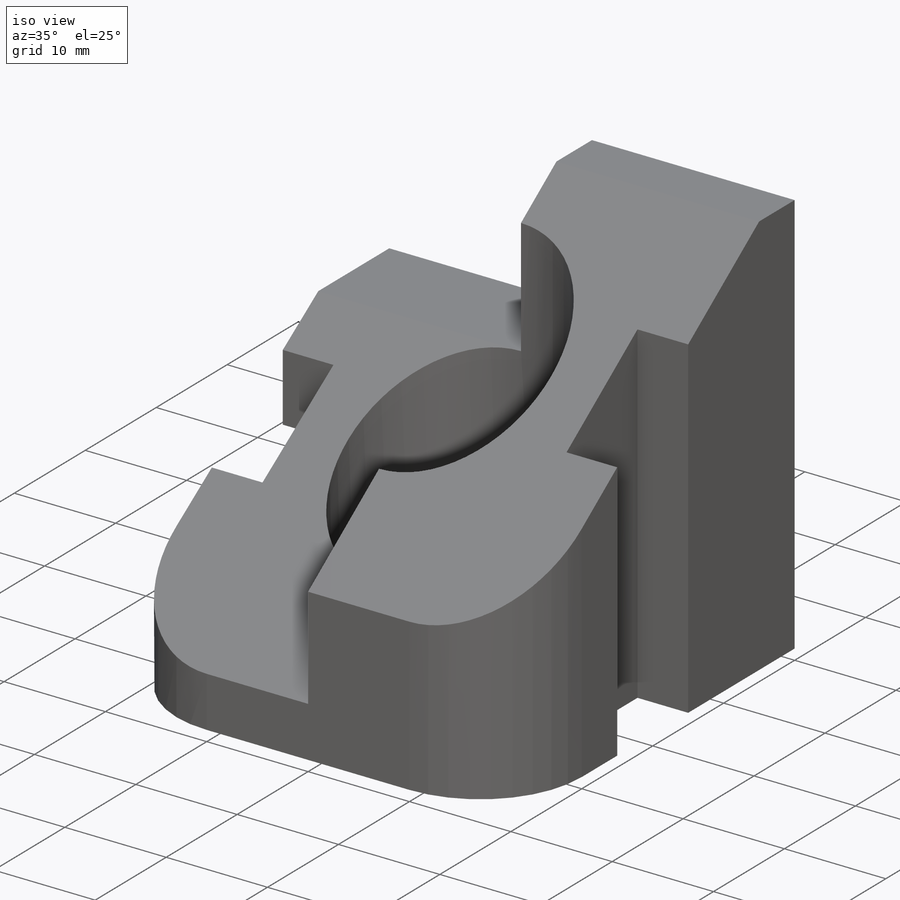
[diagram: iso view]
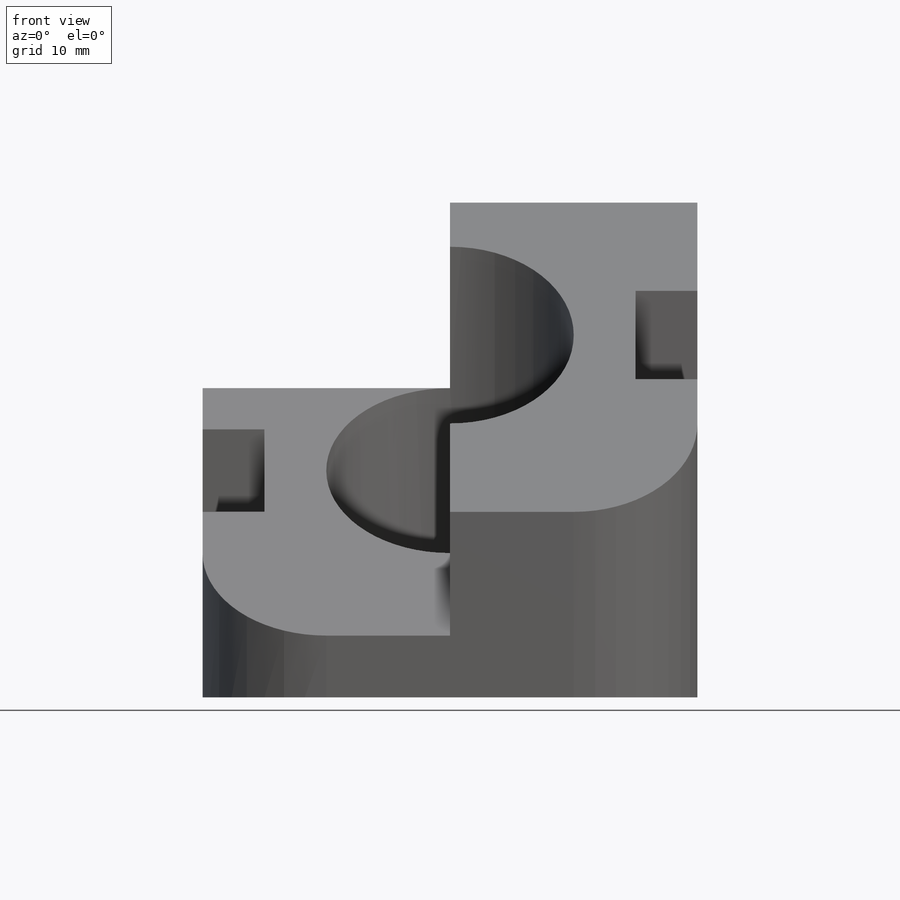
[diagram: front view]
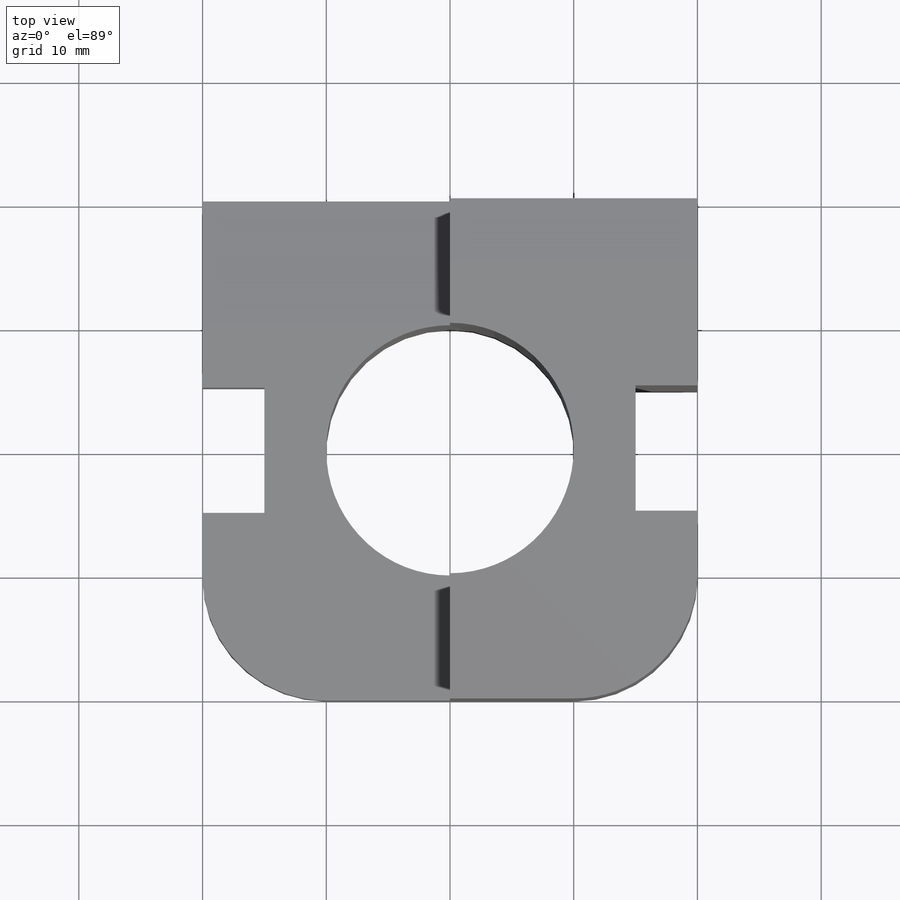
[diagram: top view]
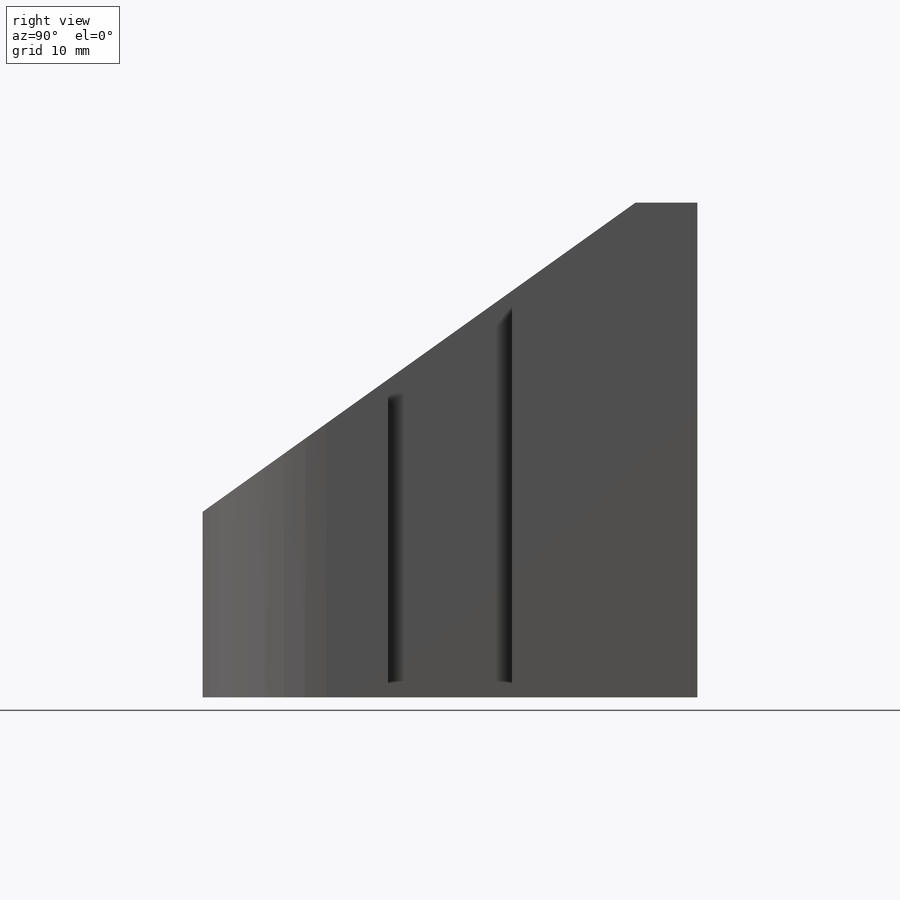
[diagram: right view]
SOLIDWORKS PART (.sldprt)
format: sldprt  version: not decoded by parser v0  size: 266,752 bytes
history: native  units: mm
features: sketch x9, cut_extrude x8, plane x2, material x1, extrude x1 (+13 scaffold rows collapsed)
feature tree (34):
  scaffold x13  (default folders/planes/origin — collapsed)
  material  "Material <not specified>"
  sketch  "Sketch1"  dims[D1=40.0mm D2=40.0mm]
  extrude  "Boss-Extrude1"  Depth=40mm
  sketch  "Sketch2"  dims[c1.D1=20.0mm c1.D2=20.0mm c1.D3=20.0mm c2.D2=20.0mm c2.D3=20.0mm]
  cut_extrude  "Cut-Extrude1"  [1 undecoded]
  sketch  "Sketch3"  dims[D1=5.0mm D2=10.0mm D3=15.0mm D4=5.0mm D5=10.0mm D6=15.0mm]
  cut_extrude  "Cut-Extrude2"  [1 undecoded]
  sketch  "Sketch5"  dims[D1=10.0mm D2=10.0mm]
  cut_extrude  "Cut-Extrude5"  [1 undecoded]
  sketch  "Sketch7"  dims[D1=10.0mm D2=10.0mm]
  cut_extrude  "Cut-Extrude6"  [1 undecoded]
  sketch  "Sketch8"  dims[D1=15.0mm]
  cut_extrude  "Cut-Extrude7"  Depth=5mm
  sketch  "Sketch9"  dims[D1=15.0mm]
  cut_extrude  "Cut-Extrude8"  Depth=20mm
  plane  "Plane1"  Offset=20mm
  sketch  "Sketch10"  dims[D1=5.0mm]
  cut_extrude  "Cut-Extrude9"  Depth=20mm
  plane  "Plane2"  Offset=40mm
  sketch  "Sketch11"  dims[D1=5.0mm D2=15.0mm]
  cut_extrude  "Cut-Extrude10"  Depth=20mm
decode coverage: 14 of 18 modeling features carry decoded parameters
note: 4 parameter values undecoded
summary: no parameter record found for 4 features
note: suppression state not decoded; provenance and decode notes live in map.json
